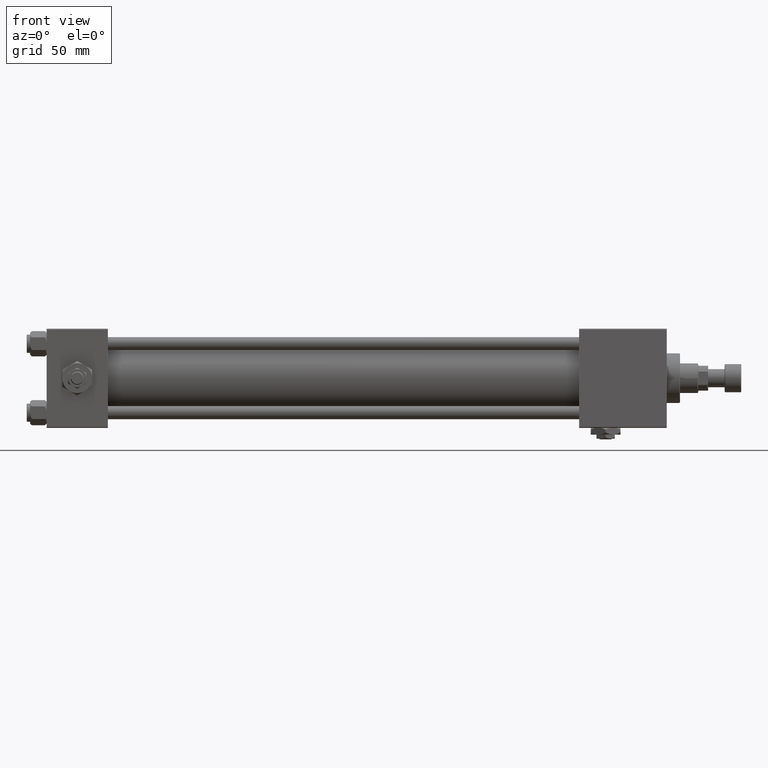
[diagram: clean part render]
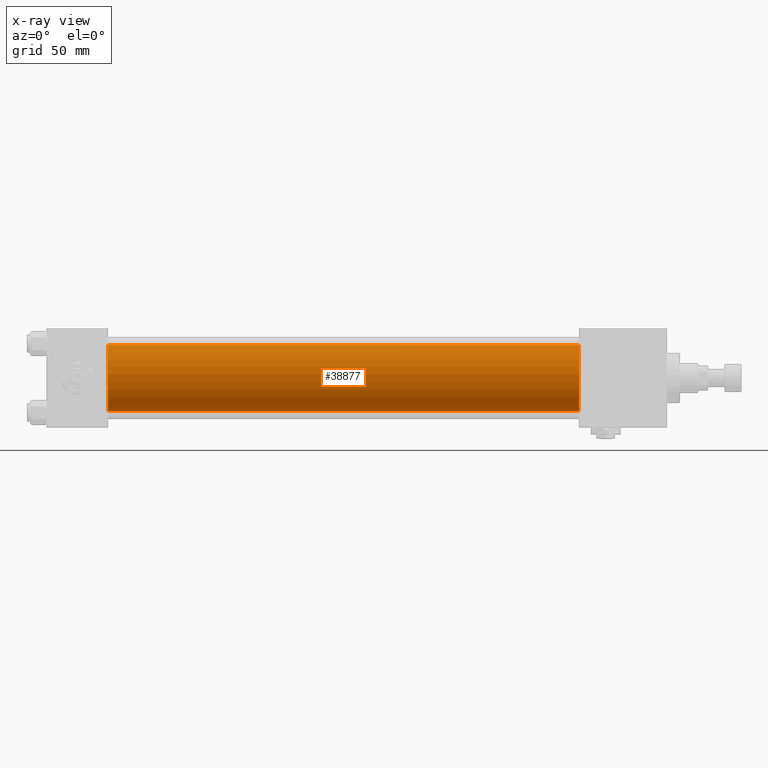
[diagram: x-ray — body ghosted, one internal face saturated and labeled with its STEP entity id]
A machine part, front view, then the same camera in x-ray: the body is ghosted and one INTERNAL B-rep face — a face not visible from any outside direction — is saturated and labeled: STEP entity #38877.
In plain terms, the highlighted cylindrical surface (edge-blend (fillet) strip) has radius 20 mm, axis along (-1, -0, -0).
Its self-contained STEP definition (entity closure, byte-faithful):
#744 = ORIENTED_EDGE ( 'NONE', *, *, #6847, .F. ) ;
#1339 = ORIENTED_EDGE ( 'NONE', *, *, #35694, .T. ) ;
#2861 = DIRECTION ( 'NONE',  ( 1.000000000000000000, 0.000000000000000000, 0.000000000000000000 ) ) ;
#6847 = EDGE_CURVE ( 'NONE', #20045, #20632, #13395, .T. ) ;
#8248 = VECTOR ( 'NONE', #35848, 1000.000000000000000 ) ;
#9213 = EDGE_CURVE ( 'NONE', #27033, #20045, #40880, .T. ) ;
#10076 = CARTESIAN_POINT ( 'NONE',  ( 37.00000000000000000, -2.602085213965210642E-15, 20.00000000000000000 ) ) ;
#13395 = CIRCLE ( 'NONE', #43225, 20.00000000000000000 ) ;
#13595 = CARTESIAN_POINT ( 'NONE',  ( 321.9999999999999432, -2.602085213965210642E-15, 0.000000000000000000 ) ) ;
#17868 = DIRECTION ( 'NONE',  ( 1.000000000000000000, 0.000000000000000000, 0.000000000000000000 ) ) ;
#18622 = CYLINDRICAL_SURFACE ( 'NONE', #22805, 20.00000000000000000 ) ;
#18636 = CARTESIAN_POINT ( 'NONE',  ( 321.9999999999999432, -2.602085213965210642E-15, 20.00000000000000000 ) ) ;
#19852 = CARTESIAN_POINT ( 'NONE',  ( 37.00000000000000000, -1.527916156705042519E-16, -20.00000000000000000 ) ) ;
#20045 = VERTEX_POINT ( 'NONE', #10076 ) ;
#20575 = CARTESIAN_POINT ( 'NONE',  ( 321.9999999999999432, -2.602085213965210642E-15, 20.00000000000000000 ) ) ;
#20632 = VERTEX_POINT ( 'NONE', #19852 ) ;
#22805 = AXIS2_PLACEMENT_3D ( 'NONE', #46414, #51190, #42401 ) ;
#24467 = EDGE_LOOP ( 'NONE', ( #1339, #38835, #744, #50194 ) ) ;
#27033 = VERTEX_POINT ( 'NONE', #18636 ) ;
#27627 = FACE_OUTER_BOUND ( 'NONE', #24467, .T. ) ;
#28095 = CIRCLE ( 'NONE', #50266, 20.00000000000000000 ) ;
#28265 = VECTOR ( 'NONE', #44337, 1000.000000000000000 ) ;
#28381 = EDGE_CURVE ( 'NONE', #36664, #20632, #38287, .T. ) ;
#31408 = DIRECTION ( 'NONE',  ( 0.000000000000000000, 0.000000000000000000, -1.000000000000000000 ) ) ;
#35694 = EDGE_CURVE ( 'NONE', #27033, #36664, #28095, .T. ) ;
#35742 = CARTESIAN_POINT ( 'NONE',  ( 321.9999999999999432, -1.527916156705042519E-16, -20.00000000000000000 ) ) ;
#35848 = DIRECTION ( 'NONE',  ( -1.000000000000000000, -0.000000000000000000, -0.000000000000000000 ) ) ;
#36664 = VERTEX_POINT ( 'NONE', #35742 ) ;
#38287 = LINE ( 'NONE', #50042, #8248 ) ;
#38835 = ORIENTED_EDGE ( 'NONE', *, *, #28381, .T. ) ;
#38877 = ADVANCED_FACE ( 'NONE', ( #27627 ), #18622, .F. ) ;
#39431 = CARTESIAN_POINT ( 'NONE',  ( 37.00000000000000000, -2.602085213965210642E-15, 0.000000000000000000 ) ) ;
#40880 = LINE ( 'NONE', #20575, #28265 ) ;
#42401 = DIRECTION ( 'NONE',  ( 0.000000000000000000, 0.000000000000000000, 1.000000000000000000 ) ) ;
#43225 = AXIS2_PLACEMENT_3D ( 'NONE', #39431, #2861, #31408 ) ;
#44337 = DIRECTION ( 'NONE',  ( -1.000000000000000000, -0.000000000000000000, -0.000000000000000000 ) ) ;
#46414 = CARTESIAN_POINT ( 'NONE',  ( 321.9999999999999432, -2.602085213965210642E-15, 0.000000000000000000 ) ) ;
#50042 = CARTESIAN_POINT ( 'NONE',  ( 321.9999999999999432, -1.527916156705042519E-16, -20.00000000000000000 ) ) ;
#50194 = ORIENTED_EDGE ( 'NONE', *, *, #9213, .F. ) ;
#50266 = AXIS2_PLACEMENT_3D ( 'NONE', #13595, #17868, #50441 ) ;
#50441 = DIRECTION ( 'NONE',  ( 0.000000000000000000, 0.000000000000000000, -1.000000000000000000 ) ) ;
#51190 = DIRECTION ( 'NONE',  ( -1.000000000000000000, -0.000000000000000000, -0.000000000000000000 ) ) ;